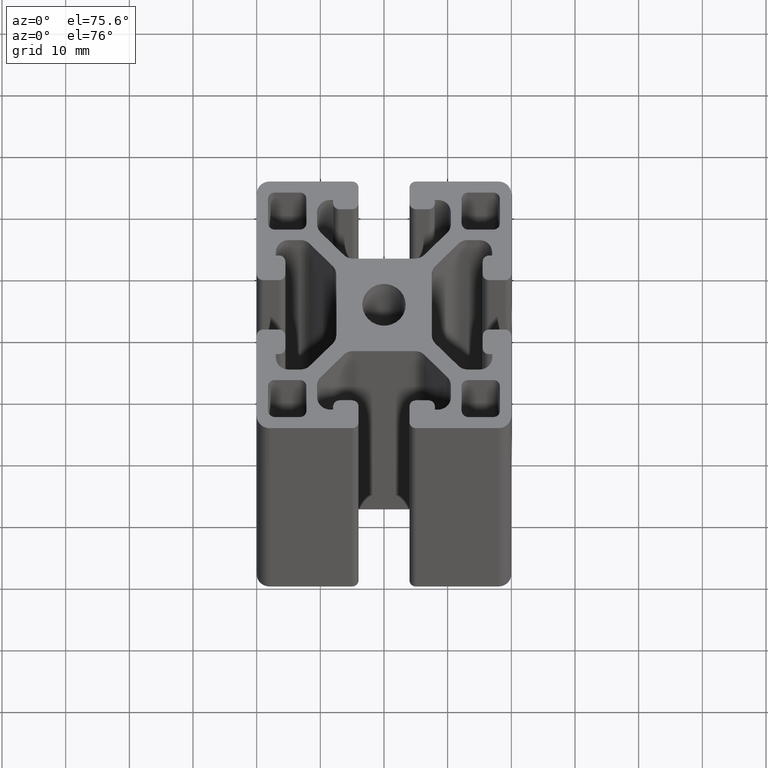
[diagram: clean part render]
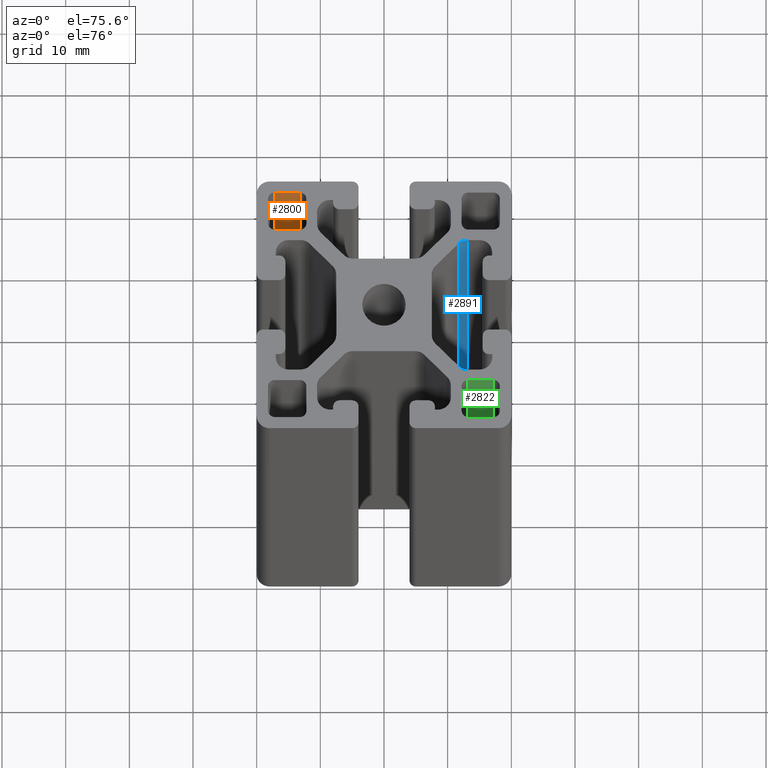
[diagram: same view with three faces highlighted in distinct colors, each labeled with its STEP entity id]
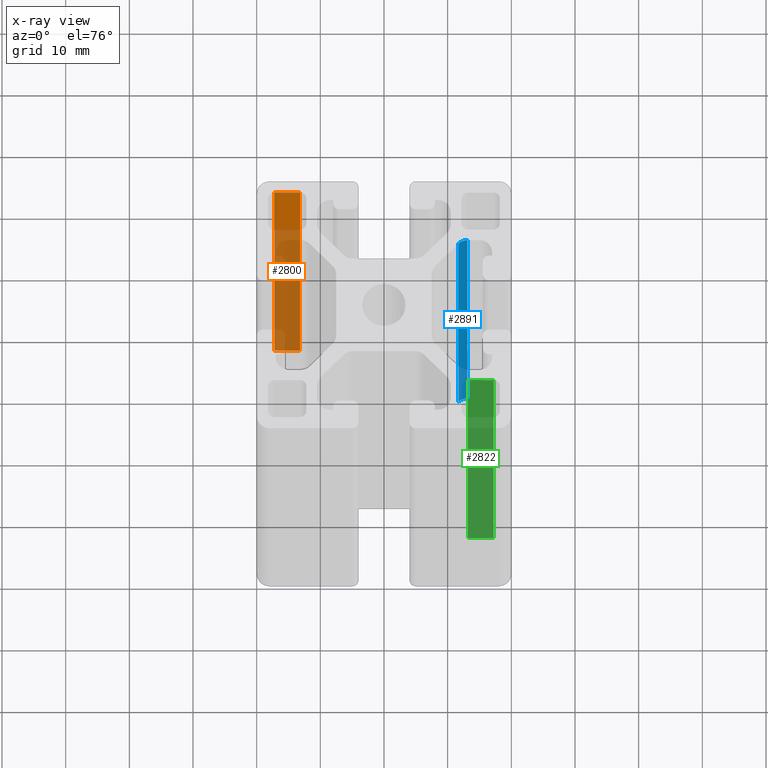
[diagram: x-ray of the same camera — body ghosted, the three highlighted faces saturated]
A machine part, auxiliary view with three faces highlighted in distinct colors.
The next image is the same camera in x-ray (body ghosted, the three faces saturated) — at least one of them is partly hidden behind the body in this view.
Their STEP definitions:

[orange] entity #2800 — the highlighted planar face has unit normal (-0, 1, 0).
#233=FACE_OUTER_BOUND('',#380,.T.);
#380=EDGE_LOOP('',(#1854,#1855,#1856,#1857));
#538=LINE('',#4106,#834);
#539=LINE('',#4108,#835);
#540=LINE('',#4110,#836);
#541=LINE('',#4111,#837);
#834=VECTOR('',#3238,4.);
#835=VECTOR('',#3239,100.);
#836=VECTOR('',#3240,4.);
#837=VECTOR('',#3241,100.);
#1130=VERTEX_POINT('',#4104);
#1131=VERTEX_POINT('',#4105);
#1132=VERTEX_POINT('',#4107);
#1133=VERTEX_POINT('',#4109);
#1420=EDGE_CURVE('',#1130,#1131,#538,.T.);
#1421=EDGE_CURVE('',#1132,#1130,#539,.T.);
#1422=EDGE_CURVE('',#1133,#1132,#540,.T.);
#1423=EDGE_CURVE('',#1133,#1131,#541,.T.);
#1854=ORIENTED_EDGE('',*,*,#1420,.F.);
#1855=ORIENTED_EDGE('',*,*,#1421,.F.);
#1856=ORIENTED_EDGE('',*,*,#1422,.F.);
#1857=ORIENTED_EDGE('',*,*,#1423,.T.);
#2722=PLANE('',#2949);
#2800=ADVANCED_FACE('',(#233),#2722,.F.);
#2949=AXIS2_PLACEMENT_3D('',#4103,#3236,#3237);
#3236=DIRECTION('center_axis',(-1.11022302462516E-15,1.,0.));
#3237=DIRECTION('ref_axis',(-1.,-1.06581410364015E-15,0.));
#3238=DIRECTION('',(1.,1.11022302462516E-15,0.));
#3239=DIRECTION('',(0.,0.,1.));
#3240=DIRECTION('',(-1.,-1.11022302462516E-15,0.));
#3241=DIRECTION('',(0.,0.,1.));
#4103=CARTESIAN_POINT('Origin',(-13.2,18.2,0.));
#4104=CARTESIAN_POINT('',(-17.2,18.2,100.));
#4105=CARTESIAN_POINT('',(-13.2,18.2,100.));
#4106=CARTESIAN_POINT('',(-6.60000000000001,18.2,100.));
#4107=CARTESIAN_POINT('',(-17.2,18.2,0.));
#4108=CARTESIAN_POINT('',(-17.2,18.2,0.));
#4109=CARTESIAN_POINT('',(-13.2,18.2,0.));
#4110=CARTESIAN_POINT('',(-6.60000000000001,18.2,0.));
#4111=CARTESIAN_POINT('',(-13.2,18.2,0.));

[blue] entity #2891 — the highlighted cylindrical surface (edge-blend (fillet) strip) has radius 2 mm, axis along (0, 0, 1).
#114=CIRCLE('',#3129,2.);
#115=CIRCLE('',#3130,2.);
#208=CYLINDRICAL_SURFACE('',#3128,2.);
#324=FACE_OUTER_BOUND('',#472,.T.);
#472=EDGE_LOOP('',(#2216,#2217,#2218,#2219));
#724=LINE('',#4658,#1020);
#726=LINE('',#4664,#1022);
#1020=VECTOR('',#3780,100.);
#1022=VECTOR('',#3786,100.);
#1318=VERTEX_POINT('',#4655);
#1319=VERTEX_POINT('',#4657);
#1320=VERTEX_POINT('',#4661);
#1321=VERTEX_POINT('',#4663);
#1694=EDGE_CURVE('',#1319,#1318,#724,.T.);
#1696=EDGE_CURVE('',#1320,#1318,#114,.T.);
#1697=EDGE_CURVE('',#1321,#1320,#726,.T.);
#1698=EDGE_CURVE('',#1319,#1321,#115,.T.);
#2216=ORIENTED_EDGE('',*,*,#1696,.F.);
#2217=ORIENTED_EDGE('',*,*,#1697,.F.);
#2218=ORIENTED_EDGE('',*,*,#1698,.F.);
#2219=ORIENTED_EDGE('',*,*,#1694,.T.);
#2891=ADVANCED_FACE('',(#324),#208,.F.);
#3128=AXIS2_PLACEMENT_3D('',#4660,#3782,#3783);
#3129=AXIS2_PLACEMENT_3D('',#4662,#3784,#3785);
#3130=AXIS2_PLACEMENT_3D('',#4665,#3787,#3788);
#3780=DIRECTION('',(0.,0.,1.));
#3782=DIRECTION('center_axis',(0.,0.,1.));
#3783=DIRECTION('ref_axis',(3.33066907387547E-15,1.,0.));
#3784=DIRECTION('center_axis',(0.,0.,-1.));
#3785=DIRECTION('ref_axis',(3.33066907387547E-15,1.,0.));
#3786=DIRECTION('',(0.,0.,1.));
#3787=DIRECTION('center_axis',(0.,0.,1.));
#3788=DIRECTION('ref_axis',(3.33066907387547E-15,1.,0.));
#4655=CARTESIAN_POINT('',(13.0961940777126,10.5,100.));
#4657=CARTESIAN_POINT('',(13.0961940777126,10.5,0.));
#4658=CARTESIAN_POINT('',(13.0961940777126,10.5,0.));
#4660=CARTESIAN_POINT('Origin',(13.0961940777126,8.5,0.));
#4661=CARTESIAN_POINT('',(11.6819805153395,9.91421356237309,100.));
#4662=CARTESIAN_POINT('Origin',(13.0961940777126,8.5,100.));
#4663=CARTESIAN_POINT('',(11.6819805153395,9.91421356237309,0.));
#4664=CARTESIAN_POINT('',(11.6819805153395,9.91421356237309,0.));
#4665=CARTESIAN_POINT('Origin',(13.0961940777126,8.5,0.));

[green] entity #2822 — the highlighted planar face has unit normal (0, 1, 0).
#255=FACE_OUTER_BOUND('',#403,.T.);
#403=EDGE_LOOP('',(#1940,#1941,#1942,#1943));
#579=LINE('',#4236,#875);
#580=LINE('',#4239,#876);
#581=LINE('',#4241,#877);
#582=LINE('',#4242,#878);
#875=VECTOR('',#3369,100.);
#876=VECTOR('',#3372,4.);
#877=VECTOR('',#3373,4.);
#878=VECTOR('',#3374,100.);
#1174=VERTEX_POINT('',#4232);
#1175=VERTEX_POINT('',#4234);
#1176=VERTEX_POINT('',#4238);
#1177=VERTEX_POINT('',#4240);
#1485=EDGE_CURVE('',#1175,#1174,#579,.T.);
#1486=EDGE_CURVE('',#1174,#1176,#580,.T.);
#1487=EDGE_CURVE('',#1177,#1175,#581,.T.);
#1488=EDGE_CURVE('',#1177,#1176,#582,.T.);
#1940=ORIENTED_EDGE('',*,*,#1486,.F.);
#1941=ORIENTED_EDGE('',*,*,#1485,.F.);
#1942=ORIENTED_EDGE('',*,*,#1487,.F.);
#1943=ORIENTED_EDGE('',*,*,#1488,.T.);
#2732=PLANE('',#2995);
#2822=ADVANCED_FACE('',(#255),#2732,.F.);
#2995=AXIS2_PLACEMENT_3D('',#4237,#3370,#3371);
#3369=DIRECTION('',(0.,0.,1.));
#3370=DIRECTION('center_axis',(5.55111512312578E-16,1.,0.));
#3371=DIRECTION('ref_axis',(-1.,5.32907051820075E-16,0.));
#3372=DIRECTION('',(1.,-5.55111512312578E-16,0.));
#3373=DIRECTION('',(-1.,5.55111512312578E-16,0.));
#3374=DIRECTION('',(0.,0.,1.));
#4232=CARTESIAN_POINT('',(13.2,-12.2,100.));
#4234=CARTESIAN_POINT('',(13.2,-12.2,0.));
#4236=CARTESIAN_POINT('',(13.2,-12.2,0.));
#4237=CARTESIAN_POINT('Origin',(17.2,-12.2,0.));
#4238=CARTESIAN_POINT('',(17.2,-12.2,100.));
#4239=CARTESIAN_POINT('',(8.6,-12.2,100.));
#4240=CARTESIAN_POINT('',(17.2,-12.2,0.));
#4241=CARTESIAN_POINT('',(8.6,-12.2,0.));
#4242=CARTESIAN_POINT('',(17.2,-12.2,0.));